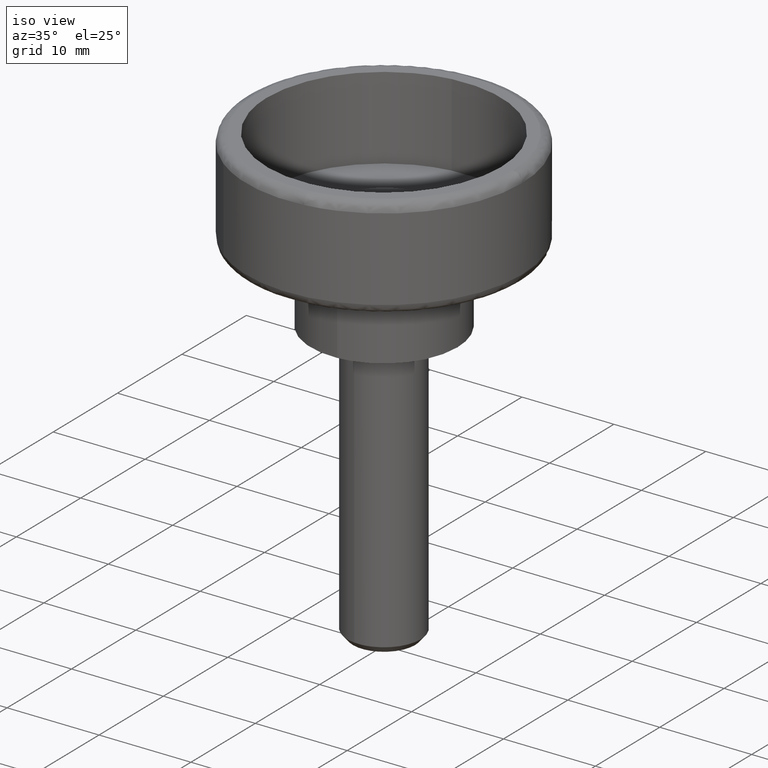
[diagram: clean part render]
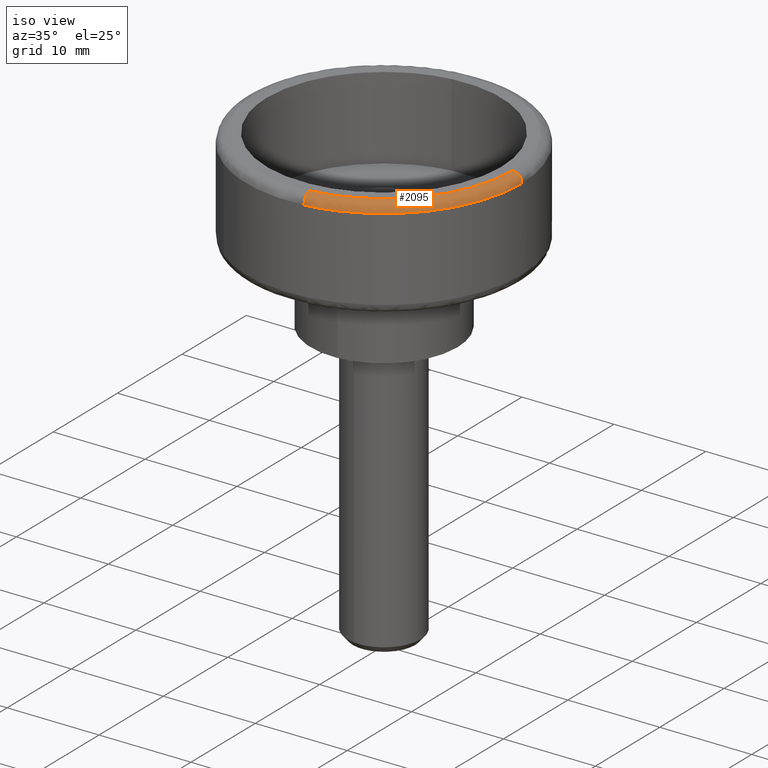
[diagram: same view with one face highlighted and labeled with its STEP entity id]
A machine part, iso view. The second image highlights one B-rep face of the part: STEP entity #2095.
In plain terms, the highlighted face is a freeform B-spline surface patch.
Its self-contained STEP definition (entity closure, byte-faithful):
#1621=CARTESIAN_POINT('',(15.0,8.658941E-016,18.500000000025519));
#1622=VERTEX_POINT('',#1621);
#1638=CARTESIAN_POINT('',(1.731963439911508,-14.899674581775599,18.500000000022730));
#1639=VERTEX_POINT('',#1638);
#1640=CARTESIAN_POINT('',(15.0,8.658941E-016,18.500000000025519));
#1641=CARTESIAN_POINT('',(15.000000000000005,-13.357375512394373,18.500000000000007));
#1642=CARTESIAN_POINT('',(1.731963439911508,-14.899674581775592,18.500000000022734));
#1650=(BOUNDED_CURVE()B_SPLINE_CURVE(2,(#1640,#1641,#1642),.UNSPECIFIED.,.F.,.U.)B_SPLINE_CURVE_WITH_KNOTS((3,3),(0.500000000000000,0.729999999999877),.UNSPECIFIED.)CURVE()GEOMETRIC_REPRESENTATION_ITEM()RATIONAL_B_SPLINE_CURVE((1.0,0.730538238691768,0.956886118190418))REPRESENTATION_ITEM(''));
#1651=EDGE_CURVE('',#1622,#1639,#1650,.T.);
#1993=CARTESIAN_POINT('',(1.616499210730571,-13.906362944056070,19.500000000000000));
#1994=VERTEX_POINT('',#1993);
#1995=CARTESIAN_POINT('',(1.616499210730571,-13.906362944056070,19.500000000000000));
#1996=CARTESIAN_POINT('',(1.731963439900862,-14.899674581731063,19.499999997849404));
#1997=CARTESIAN_POINT('',(1.731963439911508,-14.899674581775601,18.500000000022734));
#2005=(BOUNDED_CURVE()B_SPLINE_CURVE(2,(#1995,#1996,#1997),.UNSPECIFIED.,.F.,.U.)B_SPLINE_CURVE_WITH_KNOTS((3,3),(-1.736413118846382,-0.276558718062040),.UNSPECIFIED.)CURVE()GEOMETRIC_REPRESENTATION_ITEM()RATIONAL_B_SPLINE_CURVE((0.850203275535754,0.599621899597622,0.845789311881698))REPRESENTATION_ITEM(''));
#2006=EDGE_CURVE('',#1994,#1639,#2005,.T.);
#2025=CARTESIAN_POINT('',(14.000000000088900,6.587210E-017,19.500000000000000));
#2026=VERTEX_POINT('',#2025);
#2042=CARTESIAN_POINT('',(14.000000000088901,6.587210E-017,19.499999999999996));
#2043=CARTESIAN_POINT('',(14.999999999948944,1.408176E-015,19.499999999644398));
#2044=CARTESIAN_POINT('',(14.999999999999998,8.658941E-016,18.500000000025526));
#2052=(BOUNDED_CURVE()B_SPLINE_CURVE(2,(#2042,#2043,#2044),.UNSPECIFIED.,.F.,.U.)B_SPLINE_CURVE_WITH_KNOTS((3,3),(-1.736413120704137,-0.276558718067789),.UNSPECIFIED.)CURVE()GEOMETRIC_REPRESENTATION_ITEM()RATIONAL_B_SPLINE_CURVE((0.888510408930513,0.626638727311823,0.883897567120141))REPRESENTATION_ITEM(''));
#2053=EDGE_CURVE('',#2026,#1622,#2052,.T.);
#2060=CARTESIAN_POINT('',(13.930648956423312,8.529781E-016,19.497592317910890));
#2061=CARTESIAN_POINT('',(13.930648956423312,-12.405127282828481,19.497592317910900));
#2062=CARTESIAN_POINT('',(1.608491645779426,-13.837475744244536,19.497592317910893));
#2063=CARTESIAN_POINT('',(15.077739335909094,9.232148E-016,19.577336230795765));
#2064=CARTESIAN_POINT('',(15.077739335909099,-13.426601745859005,19.577336230795780));
#2065=CARTESIAN_POINT('',(1.740939552415253,-14.976893968926161,19.577336230795769));
#2066=CARTESIAN_POINT('',(14.997566303994093,9.183057E-016,18.430275763643053));
#2067=CARTESIAN_POINT('',(14.997566303994089,-13.355208326308555,18.430275763643071));
#2068=CARTESIAN_POINT('',(1.731682435072372,-14.897257163208291,18.430275763643071));
#2076=(BOUNDED_SURFACE()B_SPLINE_SURFACE(2,2,((#2060,#2063,#2066),(#2061,#2064,#2067),(#2062,#2065,#2068)),.UNSPECIFIED.,.F.,.F.,.U.)B_SPLINE_SURFACE_WITH_KNOTS((3,3),(3,3),(0.0,22.835803716975331),(0.0,1.822370955941202),.UNSPECIFIED.)GEOMETRIC_REPRESENTATION_ITEM()RATIONAL_B_SPLINE_SURFACE(((0.915966819314443,0.599412825832915,0.910892962767396),(0.669148786881942,0.437893990033146,0.665442140656688),(0.876475934125243,0.573569812104952,0.871620831229682)))REPRESENTATION_ITEM('')SURFACE());
#2077=ORIENTED_EDGE('',*,*,#1651,.F.);
#2078=ORIENTED_EDGE('',*,*,#2053,.F.);
#2079=CARTESIAN_POINT('',(14.000000000088900,6.587210E-017,19.500000000000000));
#2080=CARTESIAN_POINT('',(13.999999999999996,-12.466883811527717,19.499999999999996));
#2081=CARTESIAN_POINT('',(1.616499210730571,-13.906362944056070,19.500000000000007));
#2089=(BOUNDED_CURVE()B_SPLINE_CURVE(2,(#2079,#2080,#2081),.UNSPECIFIED.,.F.,.U.)B_SPLINE_CURVE_WITH_KNOTS((3,3),(0.500000000000000,0.729999999999333),.UNSPECIFIED.)CURVE()GEOMETRIC_REPRESENTATION_ITEM()RATIONAL_B_SPLINE_CURVE((1.0,0.730538238692405,0.956886118189347))REPRESENTATION_ITEM(''));
#2090=EDGE_CURVE('',#2026,#1994,#2089,.T.);
#2091=ORIENTED_EDGE('',*,*,#2090,.T.);
#2092=ORIENTED_EDGE('',*,*,#2006,.T.);
#2093=EDGE_LOOP('',(#2077,#2078,#2091,#2092));
#2094=FACE_OUTER_BOUND('',#2093,.T.);
#2095=ADVANCED_FACE('',(#2094),#2076,.T.);